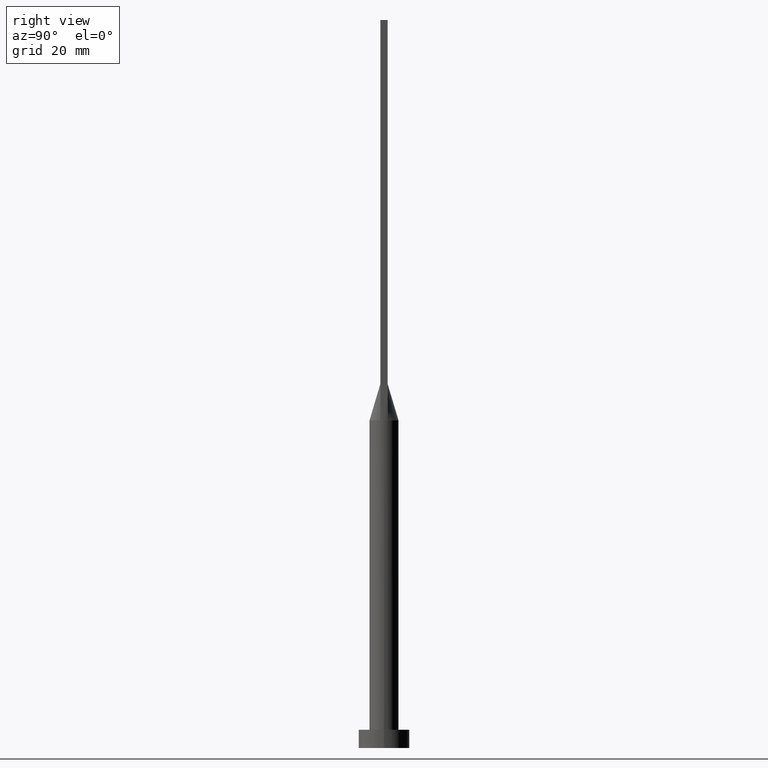
[diagram: clean part render]
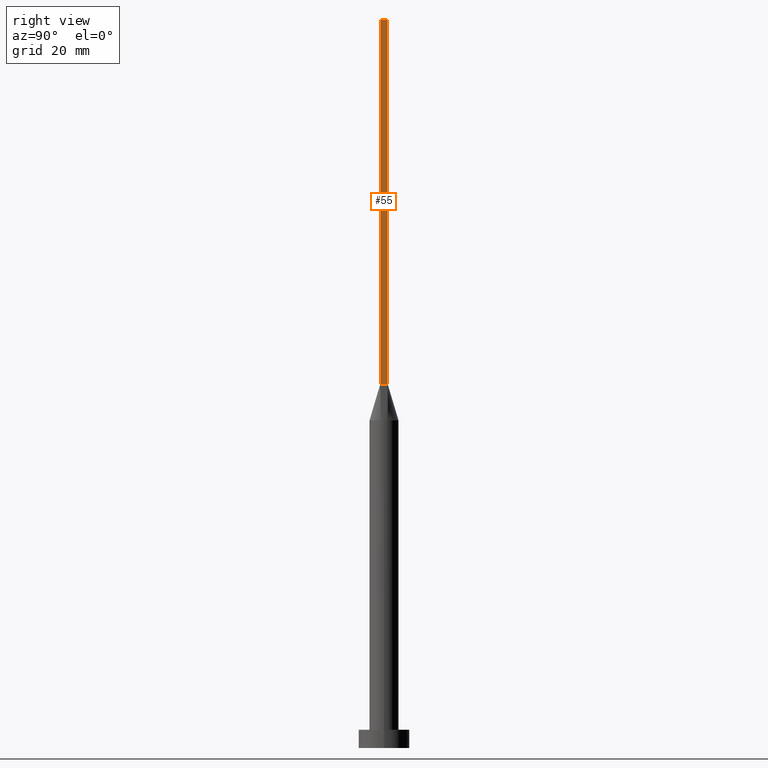
[diagram: same view with one face highlighted and labeled with its STEP entity id]
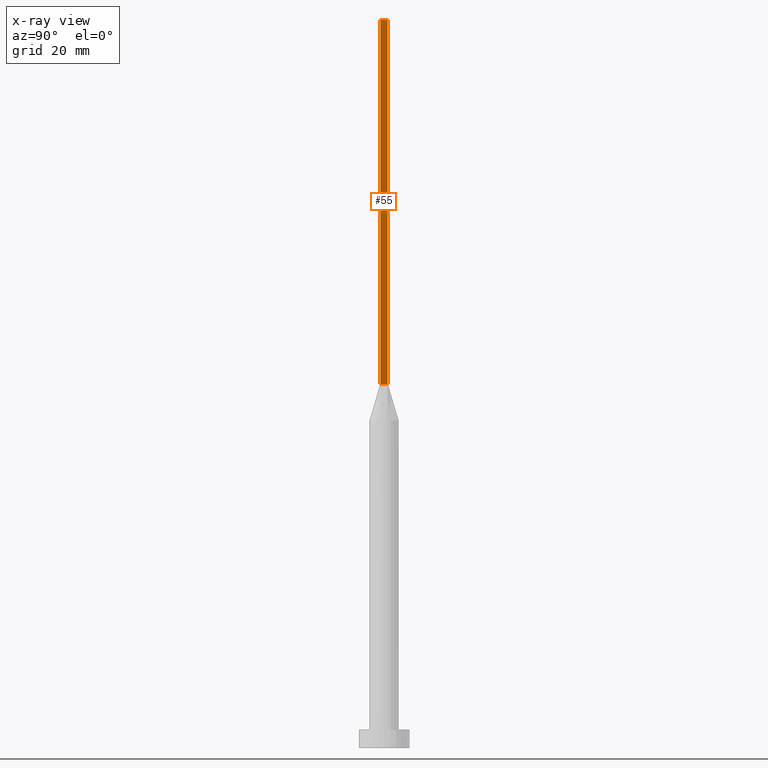
[diagram: x-ray of the same camera — body ghosted, the highlighted face saturated]
A machine part, right view. The second image highlights one B-rep face of the part: STEP entity #55.
The next image is the same camera in x-ray: the body ghosted, the highlighted face saturated — about 0% of this face is hidden behind the body in this view.
In plain terms, the highlighted planar face has unit normal (-1, 0, 0).
Its self-contained STEP definition (entity closure, byte-faithful):
#14 = DIRECTION ( 'NONE',  ( -1.000000000000000000, 0.000000000000000000, 0.000000000000000000 ) ) ;
#18 = EDGE_LOOP ( 'NONE', ( #81, #169, #391, #218 ) ) ;
#25 = LINE ( 'NONE', #383, #283 ) ;
#55 = ADVANCED_FACE ( 'NONE', ( #454 ), #97, .F. ) ;
#72 = LINE ( 'NONE', #294, #409 ) ;
#81 = ORIENTED_EDGE ( 'NONE', *, *, #496, .T. ) ;
#97 = PLANE ( 'NONE',  #328 ) ;
#105 = VECTOR ( 'NONE', #563, 1000.000000000000000 ) ;
#155 = CARTESIAN_POINT ( 'NONE',  ( 3.750000000000000000, -0.9999999999999997780, 100.0000000000000000 ) ) ;
#169 = ORIENTED_EDGE ( 'NONE', *, *, #186, .F. ) ;
#186 = EDGE_CURVE ( 'NONE', #300, #510, #72, .T. ) ;
#199 = EDGE_CURVE ( 'NONE', #403, #300, #25, .T. ) ;
#204 = DIRECTION ( 'NONE',  ( 0.000000000000000000, 1.000000000000000000, 0.000000000000000000 ) ) ;
#218 = ORIENTED_EDGE ( 'NONE', *, *, #558, .T. ) ;
#248 = VERTEX_POINT ( 'NONE', #155 ) ;
#281 = LINE ( 'NONE', #372, #387 ) ;
#283 = VECTOR ( 'NONE', #204, 1000.000000000000000 ) ;
#294 = CARTESIAN_POINT ( 'NONE',  ( 3.750000000000000000, 1.000000000000000000, 200.0000000000000000 ) ) ;
#300 = VERTEX_POINT ( 'NONE', #423 ) ;
#322 = CARTESIAN_POINT ( 'NONE',  ( 3.750000000000000000, -0.9999999999999997780, 200.0000000000000000 ) ) ;
#328 = AXIS2_PLACEMENT_3D ( 'NONE', #322, #14, #461 ) ;
#372 = CARTESIAN_POINT ( 'NONE',  ( 3.750000000000000000, 1.000000000000000000, 100.0000000000000000 ) ) ;
#383 = CARTESIAN_POINT ( 'NONE',  ( 3.750000000000000000, -0.9999999999999997780, 200.0000000000000000 ) ) ;
#387 = VECTOR ( 'NONE', #497, 1000.000000000000000 ) ;
#391 = ORIENTED_EDGE ( 'NONE', *, *, #199, .F. ) ;
#403 = VERTEX_POINT ( 'NONE', #533 ) ;
#409 = VECTOR ( 'NONE', #428, 1000.000000000000000 ) ;
#422 = CARTESIAN_POINT ( 'NONE',  ( 3.750000000000000000, -0.9999999999999997780, 200.0000000000000000 ) ) ;
#423 = CARTESIAN_POINT ( 'NONE',  ( 3.750000000000000000, 1.000000000000000000, 200.0000000000000000 ) ) ;
#428 = DIRECTION ( 'NONE',  ( -0.000000000000000000, -0.000000000000000000, -1.000000000000000000 ) ) ;
#454 = FACE_OUTER_BOUND ( 'NONE', #18, .T. ) ;
#461 = DIRECTION ( 'NONE',  ( 0.000000000000000000, 0.000000000000000000, 1.000000000000000000 ) ) ;
#496 = EDGE_CURVE ( 'NONE', #248, #510, #281, .T. ) ;
#497 = DIRECTION ( 'NONE',  ( -0.000000000000000000, 1.000000000000000000, -0.000000000000000000 ) ) ;
#510 = VERTEX_POINT ( 'NONE', #547 ) ;
#511 = LINE ( 'NONE', #422, #105 ) ;
#533 = CARTESIAN_POINT ( 'NONE',  ( 3.750000000000000000, -0.9999999999999997780, 200.0000000000000000 ) ) ;
#547 = CARTESIAN_POINT ( 'NONE',  ( 3.750000000000000000, 1.000000000000000000, 100.0000000000000000 ) ) ;
#558 = EDGE_CURVE ( 'NONE', #403, #248, #511, .T. ) ;
#563 = DIRECTION ( 'NONE',  ( -0.000000000000000000, -0.000000000000000000, -1.000000000000000000 ) ) ;